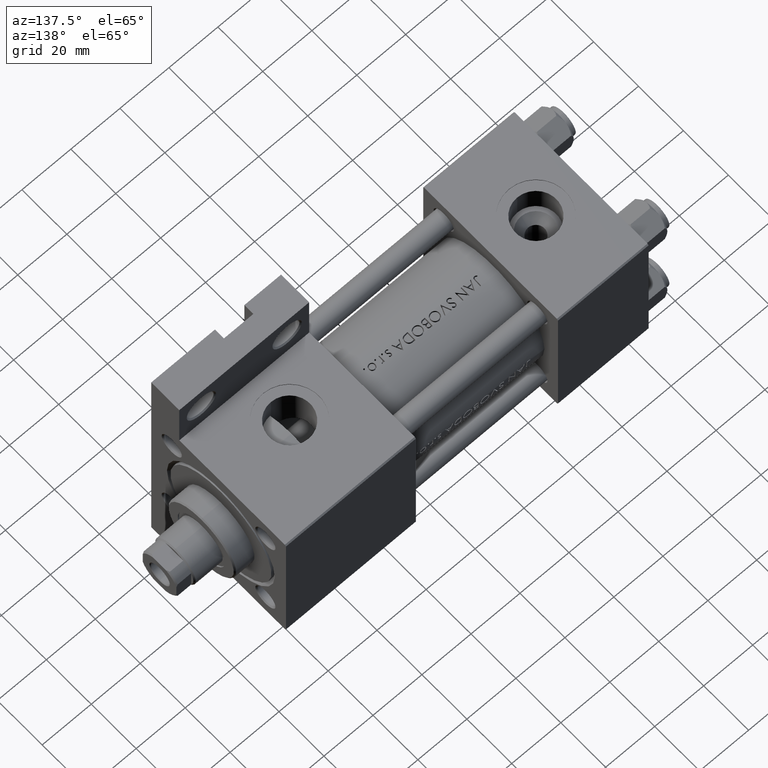
[diagram: clean part render]
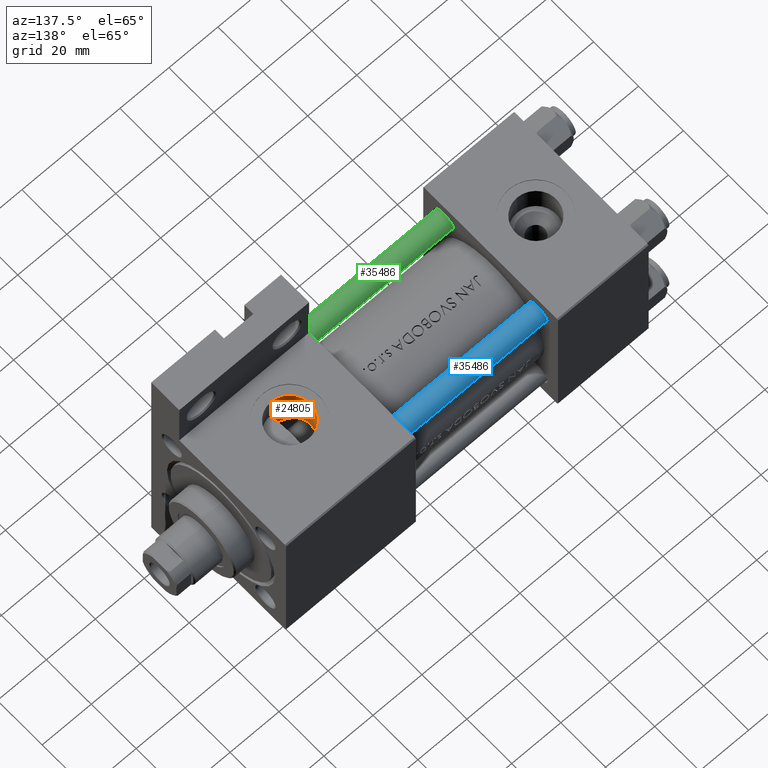
[diagram: same view with three faces highlighted in distinct colors, each labeled with its STEP entity id]
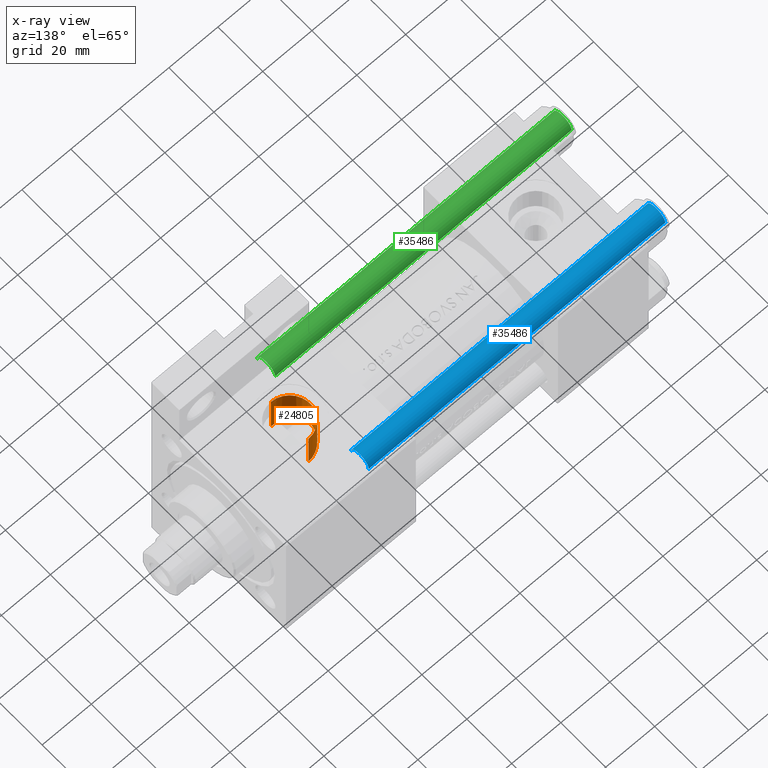
[diagram: x-ray of the same camera — body ghosted, the three highlighted faces saturated]
A machine part, auxiliary view with three faces highlighted in distinct colors.
The next image is the same camera in x-ray (body ghosted, the three faces saturated) — at least one of them is partly hidden behind the body in this view.
Their STEP definitions:

[orange] entity #24805 — the highlighted cylindrical surface (edge-blend (fillet) strip) has radius 8.33 mm, axis along (-0, -0, 1).
#152 = DIRECTION ( 'NONE',  ( 0.000000000000000000, 0.000000000000000000, -1.000000000000000000 ) ) ;
#546 = CARTESIAN_POINT ( 'NONE',  ( 113.9447745599910462, -13.49558842506479728, -6.625962586499325901 ) ) ;
#1060 = CARTESIAN_POINT ( 'NONE',  ( 113.5350992635120946, -13.67874218084610760, -6.292340136017513963 ) ) ;
#4050 = VECTOR ( 'NONE', #6663, 1000.000000000000000 ) ;
#4264 = CARTESIAN_POINT ( 'NONE',  ( 118.9999999999999716, -13.65727278778601850, 8.330000000000005400 ) ) ;
#4416 = CARTESIAN_POINT ( 'NONE',  ( 111.5752649895499360, -14.74221051929571757, -3.814739071753834310 ) ) ;
#5732 = CARTESIAN_POINT ( 'NONE',  ( 119.0000000000000000, -29.80000000000000071, -8.329999999999998295 ) ) ;
#6663 = DIRECTION ( 'NONE',  ( -0.000000000000000000, -1.000000000000000000, -8.673617379884036705E-17 ) ) ;
#6731 = CARTESIAN_POINT ( 'NONE',  ( 111.1802572377113307, -15.38725658591405931, 2.883870468962883571 ) ) ;
#6870 = CARTESIAN_POINT ( 'NONE',  ( 119.0000000000000000, -29.80000000000000071, 8.329999999999998295 ) ) ;
#7158 = DIRECTION ( 'NONE',  ( 0.000000000000000000, 0.000000000000000000, -1.000000000000000000 ) ) ;
#8501 = CARTESIAN_POINT ( 'NONE',  ( 116.2844231252480967, -12.70474083805252263, -7.879717489799560326 ) ) ;
#10563 = CARTESIAN_POINT ( 'NONE',  ( 111.7472532553044999, -15.18721376379365218, 4.133323573101121973 ) ) ;
#11265 = CARTESIAN_POINT ( 'NONE',  ( 119.0000000000000000, 30.00100000000000122, 5.204257164104221228E-15 ) ) ;
#11335 = CARTESIAN_POINT ( 'NONE',  ( 112.7060474951618261, -14.84506177068972121, 5.463518260758180922 ) ) ;
#12335 = LINE ( 'NONE', #27709, #46713 ) ;
#12375 = CARTESIAN_POINT ( 'NONE',  ( 118.9999999999999147, -12.37744319316396258, -8.330000000000008953 ) ) ;
#12505 = VERTEX_POINT ( 'NONE', #20706 ) ;
#12646 = EDGE_CURVE ( 'NONE', #35356, #13357, #18724, .T. ) ;
#13357 = VERTEX_POINT ( 'NONE', #5732 ) ;
#14672 = CARTESIAN_POINT ( 'NONE',  ( 110.8649783903498189, -15.48105943212932445, 1.813030084315799817 ) ) ;
#14871 = CARTESIAN_POINT ( 'NONE',  ( 119.0000000000000000, 30.00100000000000122, -8.329999999999992966 ) ) ;
#15181 = CARTESIAN_POINT ( 'NONE',  ( 116.0156785925474594, -13.93808161561542036, 7.781867807067799347 ) ) ;
#15535 = EDGE_CURVE ( 'NONE', #48957, #35356, #12335, .T. ) ;
#15694 = CARTESIAN_POINT ( 'NONE',  ( 111.8341604813886505, -14.58038837096531104, -4.280767472769193560 ) ) ;
#16465 = CARTESIAN_POINT ( 'NONE',  ( 117.0788754960993003, -12.54034099106977429, -8.110128301142456309 ) ) ;
#18134 = ORIENTED_EDGE ( 'NONE', *, *, #12646, .T. ) ;
#18724 = CIRCLE ( 'NONE', #46637, 8.329999999999998295 ) ;
#19382 = CARTESIAN_POINT ( 'NONE',  ( 119.0000000000000000, -29.80000000000000071, 1.734723475976808635E-17 ) ) ;
#20285 = CARTESIAN_POINT ( 'NONE',  ( 110.9751637256130721, -15.15435615274483006, -2.300267152961667172 ) ) ;
#20706 = CARTESIAN_POINT ( 'NONE',  ( 118.9999999999999147, -12.37744319316396258, -8.330000000000008953 ) ) ;
#21073 = B_SPLINE_CURVE_WITH_KNOTS ( 'NONE', 3,
 ( #42147, #26981, #50361, #27241, #34187, #38785, #15181, #31085, #23373, #39037, #35211, #30059, #11335, #45745, #42656, #10563, #26218, #6731, #22364, #49855, #14672, #30325, #46021, #31601, #39561, #20285, #32118, #4416, #15694, #39296, #48035, #40064, #1060, #546, #32358, #28019, #47548, #31855, #8501, #23893, #16465, #27487, #47022, #12375 ),
 .UNSPECIFIED., .F., .F.,
 ( 4, 2, 2, 2, 2, 2, 2, 2, 2, 2, 2, 2, 2, 2, 2, 2, 2, 2, 2, 2, 2, 4 ),
 ( 0.0002964229747078794743, 0.001960349124772011852, 0.002792312199804097665, 0.003624275274836183912, 0.005288201424900354670, 0.006952127574964525429, 0.007784090649996596063, 0.008616053725028667565, 0.01027997987509280710, 0.01111194295012487600, 0.01194390602515694490, 0.01360783217522108617, 0.01527175832528522396, 0.01693568447534936003, 0.01859961062541350130, 0.02026353677547763563, 0.02109549985050971840, 0.02192746292554180465, 0.02359138907560600143, 0.02442335215063808074, 0.02525531522567016351, 0.02691924137573428397 ),
 .UNSPECIFIED. ) ;
#22364 = CARTESIAN_POINT ( 'NONE',  ( 111.0875519413229426, -15.41754285367233024, 2.619180329637378346 ) ) ;
#23373 = CARTESIAN_POINT ( 'NONE',  ( 114.7797100734272249, -14.20872863379186413, 7.202592882685876496 ) ) ;
#23893 = CARTESIAN_POINT ( 'NONE',  ( 116.8092686651294940, -12.59015132413961346, -8.041455197920139852 ) ) ;
#24805 = ADVANCED_FACE ( 'NONE', ( #46204 ), #27178, .F. ) ;
#24861 = ORIENTED_EDGE ( 'NONE', *, *, #28872, .F. ) ;
#26218 = CARTESIAN_POINT ( 'NONE',  ( 111.4923460854777062, -15.28036243698408114, 3.650859583748323089 ) ) ;
#26981 = CARTESIAN_POINT ( 'NONE',  ( 118.4402288968711332, -13.65727278778600962, 8.329999999999998295 ) ) ;
#27178 = CYLINDRICAL_SURFACE ( 'NONE', #34349, 8.329999999999998295 ) ;
#27206 = ORIENTED_EDGE ( 'NONE', *, *, #29476, .F. ) ;
#27241 = CARTESIAN_POINT ( 'NONE',  ( 117.0748206279014738, -13.77363351099645428, 8.109209814263847349 ) ) ;
#27425 = DIRECTION ( 'NONE',  ( -0.000000000000000000, -1.000000000000000000, -8.673617379884036705E-17 ) ) ;
#27487 = CARTESIAN_POINT ( 'NONE',  ( 117.8895153573025141, -12.42016728142114701, -8.274039251795406003 ) ) ;
#27709 = CARTESIAN_POINT ( 'NONE',  ( 119.0000000000000000, 30.00100000000000122, 8.330000000000003624 ) ) ;
#28019 = CARTESIAN_POINT ( 'NONE',  ( 114.8215882018978391, -13.14172009163120158, -7.225711510336550347 ) ) ;
#28872 = EDGE_CURVE ( 'NONE', #12505, #13357, #45422, .T. ) ;
#29476 = EDGE_CURVE ( 'NONE', #48957, #12505, #21073, .T. ) ;
#30059 = CARTESIAN_POINT ( 'NONE',  ( 112.8875845911658615, -14.78248954541007976, 5.665731596908938350 ) ) ;
#30325 = CARTESIAN_POINT ( 'NONE',  ( 110.7112461880094116, -15.50957323853583780, 0.9962323768327439044 ) ) ;
#31085 = CARTESIAN_POINT ( 'NONE',  ( 115.2599415689696514, -14.09013971890589367, 7.463231622501757201 ) ) ;
#31601 = CARTESIAN_POINT ( 'NONE',  ( 110.6788208291878561, -15.41897209480152853, -0.6800047432425768701 ) ) ;
#31855 = CARTESIAN_POINT ( 'NONE',  ( 116.0299557140279916, -12.76917006670295507, -7.787145633478548490 ) ) ;
#32118 = CARTESIAN_POINT ( 'NONE',  ( 111.1458760946897257, -15.02893595657211812, -2.826952748278971583 ) ) ;
#32358 = CARTESIAN_POINT ( 'NONE',  ( 114.1597696738223107, -13.40442646424482653, -6.784640991668757337 ) ) ;
#34187 = CARTESIAN_POINT ( 'NONE',  ( 116.8040088816501338, -13.80924186775012608, 8.040117357769602791 ) ) ;
#34349 = AXIS2_PLACEMENT_3D ( 'NONE', #11265, #27425, #7158 ) ;
#35211 = CARTESIAN_POINT ( 'NONE',  ( 113.4585362008320431, -14.59198425344949968, 6.242918035339914518 ) ) ;
#35356 = VERTEX_POINT ( 'NONE', #6870 ) ;
#38652 = DIRECTION ( 'NONE',  ( 0.000000000000000000, -1.000000000000000000, -8.673617379884036705E-17 ) ) ;
#38785 = CARTESIAN_POINT ( 'NONE',  ( 116.2739287588945558, -13.89159449363385868, 7.876191954681997842 ) ) ;
#39037 = CARTESIAN_POINT ( 'NONE',  ( 113.8739582388361811, -14.46118184133602291, 6.588769775978934540 ) ) ;
#39296 = CARTESIAN_POINT ( 'NONE',  ( 112.4396089733251500, -14.23084034093848871, -5.160958800410481828 ) ) ;
#39525 = DIRECTION ( 'NONE',  ( -0.000000000000000000, -1.000000000000000000, -8.673617379884036705E-17 ) ) ;
#39561 = CARTESIAN_POINT ( 'NONE',  ( 110.7429708449152201, -15.34852991930145194, -1.229103631835164911 ) ) ;
#40064 = CARTESIAN_POINT ( 'NONE',  ( 113.3394948981820249, -13.77106420032280987, -6.116893409231384915 ) ) ;
#42147 = CARTESIAN_POINT ( 'NONE',  ( 118.9999999999999716, -13.65727278778601850, 8.330000000000005400 ) ) ;
#42656 = CARTESIAN_POINT ( 'NONE',  ( 112.1981779002745583, -15.02462001683807813, 4.816488959745233167 ) ) ;
#43609 = EDGE_LOOP ( 'NONE', ( #27206, #45200, #18134, #24861 ) ) ;
#45200 = ORIENTED_EDGE ( 'NONE', *, *, #15535, .T. ) ;
#45422 = LINE ( 'NONE', #14871, #4050 ) ;
#45745 = CARTESIAN_POINT ( 'NONE',  ( 112.3608501097294834, -14.96629921780479222, 5.038408345233414742 ) ) ;
#46021 = CARTESIAN_POINT ( 'NONE',  ( 110.6628604943898466, -15.50023308341318184, 0.4433216750675684770 ) ) ;
#46204 = FACE_OUTER_BOUND ( 'NONE', #43609, .T. ) ;
#46637 = AXIS2_PLACEMENT_3D ( 'NONE', #19382, #38652, #152 ) ;
#46713 = VECTOR ( 'NONE', #39525, 1000.000000000000000 ) ;
#47022 = CARTESIAN_POINT ( 'NONE',  ( 118.4395586264458444, -12.37744319316392350, -8.329999999999991189 ) ) ;
#47548 = CARTESIAN_POINT ( 'NONE',  ( 115.2879542435925657, -12.97930757043255667, -7.476444142297407502 ) ) ;
#48035 = CARTESIAN_POINT ( 'NONE',  ( 112.7790444670014836, -14.04730117707516790, -5.564514732380302142 ) ) ;
#48957 = VERTEX_POINT ( 'NONE', #4264 ) ;
#49855 = CARTESIAN_POINT ( 'NONE',  ( 110.9298526618756995, -15.46444573078611739, 2.083185498554315895 ) ) ;
#50361 = CARTESIAN_POINT ( 'NONE',  ( 117.8891226359529583, -13.68766009658879490, 8.274155496972177559 ) ) ;

[blue] entity #35486 — the highlighted cylindrical surface (edge-blend (fillet) strip) has radius 4 mm, axis along (1, -0, 0).
#310 = DIRECTION ( 'NONE',  ( -0.000000000000000000, -0.000000000000000000, 1.000000000000000000 ) ) ;
#3536 = DIRECTION ( 'NONE',  ( -0.000000000000000000, -0.000000000000000000, -1.000000000000000000 ) ) ;
#5410 = CARTESIAN_POINT ( 'NONE',  ( -4.000000000000000000, 0.000000000000000000, 121.5000000000000426 ) ) ;
#7312 = VECTOR ( 'NONE', #35976, 1000.000000000000000 ) ;
#7345 = VERTEX_POINT ( 'NONE', #5410 ) ;
#11848 = AXIS2_PLACEMENT_3D ( 'NONE', #46660, #3536, #47171 ) ;
#12118 = CARTESIAN_POINT ( 'NONE',  ( 4.000000000000000000, 4.898587196589411843E-16, 122.0000000000000000 ) ) ;
#12170 = DIRECTION ( 'NONE',  ( -0.000000000000000000, -0.000000000000000000, -1.000000000000000000 ) ) ;
#14359 = EDGE_CURVE ( 'NONE', #27231, #18333, #44442, .T. ) ;
#15320 = FACE_OUTER_BOUND ( 'NONE', #29219, .T. ) ;
#15366 = VERTEX_POINT ( 'NONE', #38753 ) ;
#15722 = CARTESIAN_POINT ( 'NONE',  ( 4.000000000000000000, 4.898587196589411843E-16, 0.5000000000000559552 ) ) ;
#16220 = DIRECTION ( 'NONE',  ( 1.000000000000000000, 0.000000000000000000, 0.000000000000000000 ) ) ;
#16737 = EDGE_CURVE ( 'NONE', #27231, #7345, #45946, .T. ) ;
#17380 = ORIENTED_EDGE ( 'NONE', *, *, #19632, .T. ) ;
#18333 = VERTEX_POINT ( 'NONE', #15722 ) ;
#18662 = DIRECTION ( 'NONE',  ( 0.000000000000000000, 0.000000000000000000, -1.000000000000000000 ) ) ;
#19632 = EDGE_CURVE ( 'NONE', #15366, #18333, #47263, .T. ) ;
#20055 = CARTESIAN_POINT ( 'NONE',  ( 0.000000000000000000, 0.000000000000000000, 0.5000000000000559552 ) ) ;
#20345 = LINE ( 'NONE', #28320, #31846 ) ;
#25444 = EDGE_CURVE ( 'NONE', #7345, #15366, #20345, .T. ) ;
#26581 = CARTESIAN_POINT ( 'NONE',  ( 4.000000000000000000, 4.898587196589411843E-16, 121.5000000000000426 ) ) ;
#27231 = VERTEX_POINT ( 'NONE', #26581 ) ;
#28320 = CARTESIAN_POINT ( 'NONE',  ( -4.000000000000000000, 0.000000000000000000, 122.0000000000000000 ) ) ;
#29077 = ORIENTED_EDGE ( 'NONE', *, *, #16737, .T. ) ;
#29219 = EDGE_LOOP ( 'NONE', ( #40599, #29077, #47054, #17380 ) ) ;
#31846 = VECTOR ( 'NONE', #12170, 1000.000000000000000 ) ;
#35085 = CARTESIAN_POINT ( 'NONE',  ( 0.000000000000000000, 0.000000000000000000, 121.5000000000000426 ) ) ;
#35486 = ADVANCED_FACE ( 'NONE', ( #15320 ), #50761, .T. ) ;
#35976 = DIRECTION ( 'NONE',  ( -0.000000000000000000, -0.000000000000000000, -1.000000000000000000 ) ) ;
#38210 = AXIS2_PLACEMENT_3D ( 'NONE', #20055, #310, #16220 ) ;
#38753 = CARTESIAN_POINT ( 'NONE',  ( -4.000000000000000000, 0.000000000000000000, 0.5000000000000559552 ) ) ;
#40599 = ORIENTED_EDGE ( 'NONE', *, *, #14359, .F. ) ;
#44442 = LINE ( 'NONE', #12118, #7312 ) ;
#45123 = AXIS2_PLACEMENT_3D ( 'NONE', #35085, #18662, #50003 ) ;
#45946 = CIRCLE ( 'NONE', #45123, 4.000000000000000000 ) ;
#46660 = CARTESIAN_POINT ( 'NONE',  ( 0.000000000000000000, 0.000000000000000000, 122.0000000000000000 ) ) ;
#47054 = ORIENTED_EDGE ( 'NONE', *, *, #25444, .T. ) ;
#47171 = DIRECTION ( 'NONE',  ( -1.000000000000000000, 0.000000000000000000, 0.000000000000000000 ) ) ;
#47263 = CIRCLE ( 'NONE', #38210, 4.000000000000000000 ) ;
#50003 = DIRECTION ( 'NONE',  ( 1.000000000000000000, 0.000000000000000000, 0.000000000000000000 ) ) ;
#50761 = CYLINDRICAL_SURFACE ( 'NONE', #11848, 4.000000000000000000 ) ;

[green] entity #35486 — the highlighted cylindrical surface (edge-blend (fillet) strip) has radius 4 mm, axis along (-1, 0, 0).
#310 = DIRECTION ( 'NONE',  ( -0.000000000000000000, -0.000000000000000000, 1.000000000000000000 ) ) ;
#3536 = DIRECTION ( 'NONE',  ( -0.000000000000000000, -0.000000000000000000, -1.000000000000000000 ) ) ;
#5410 = CARTESIAN_POINT ( 'NONE',  ( -4.000000000000000000, 0.000000000000000000, 121.5000000000000426 ) ) ;
#7312 = VECTOR ( 'NONE', #35976, 1000.000000000000000 ) ;
#7345 = VERTEX_POINT ( 'NONE', #5410 ) ;
#11848 = AXIS2_PLACEMENT_3D ( 'NONE', #46660, #3536, #47171 ) ;
#12118 = CARTESIAN_POINT ( 'NONE',  ( 4.000000000000000000, 4.898587196589411843E-16, 122.0000000000000000 ) ) ;
#12170 = DIRECTION ( 'NONE',  ( -0.000000000000000000, -0.000000000000000000, -1.000000000000000000 ) ) ;
#14359 = EDGE_CURVE ( 'NONE', #27231, #18333, #44442, .T. ) ;
#15320 = FACE_OUTER_BOUND ( 'NONE', #29219, .T. ) ;
#15366 = VERTEX_POINT ( 'NONE', #38753 ) ;
#15722 = CARTESIAN_POINT ( 'NONE',  ( 4.000000000000000000, 4.898587196589411843E-16, 0.5000000000000559552 ) ) ;
#16220 = DIRECTION ( 'NONE',  ( 1.000000000000000000, 0.000000000000000000, 0.000000000000000000 ) ) ;
#16737 = EDGE_CURVE ( 'NONE', #27231, #7345, #45946, .T. ) ;
#17380 = ORIENTED_EDGE ( 'NONE', *, *, #19632, .T. ) ;
#18333 = VERTEX_POINT ( 'NONE', #15722 ) ;
#18662 = DIRECTION ( 'NONE',  ( 0.000000000000000000, 0.000000000000000000, -1.000000000000000000 ) ) ;
#19632 = EDGE_CURVE ( 'NONE', #15366, #18333, #47263, .T. ) ;
#20055 = CARTESIAN_POINT ( 'NONE',  ( 0.000000000000000000, 0.000000000000000000, 0.5000000000000559552 ) ) ;
#20345 = LINE ( 'NONE', #28320, #31846 ) ;
#25444 = EDGE_CURVE ( 'NONE', #7345, #15366, #20345, .T. ) ;
#26581 = CARTESIAN_POINT ( 'NONE',  ( 4.000000000000000000, 4.898587196589411843E-16, 121.5000000000000426 ) ) ;
#27231 = VERTEX_POINT ( 'NONE', #26581 ) ;
#28320 = CARTESIAN_POINT ( 'NONE',  ( -4.000000000000000000, 0.000000000000000000, 122.0000000000000000 ) ) ;
#29077 = ORIENTED_EDGE ( 'NONE', *, *, #16737, .T. ) ;
#29219 = EDGE_LOOP ( 'NONE', ( #40599, #29077, #47054, #17380 ) ) ;
#31846 = VECTOR ( 'NONE', #12170, 1000.000000000000000 ) ;
#35085 = CARTESIAN_POINT ( 'NONE',  ( 0.000000000000000000, 0.000000000000000000, 121.5000000000000426 ) ) ;
#35486 = ADVANCED_FACE ( 'NONE', ( #15320 ), #50761, .T. ) ;
#35976 = DIRECTION ( 'NONE',  ( -0.000000000000000000, -0.000000000000000000, -1.000000000000000000 ) ) ;
#38210 = AXIS2_PLACEMENT_3D ( 'NONE', #20055, #310, #16220 ) ;
#38753 = CARTESIAN_POINT ( 'NONE',  ( -4.000000000000000000, 0.000000000000000000, 0.5000000000000559552 ) ) ;
#40599 = ORIENTED_EDGE ( 'NONE', *, *, #14359, .F. ) ;
#44442 = LINE ( 'NONE', #12118, #7312 ) ;
#45123 = AXIS2_PLACEMENT_3D ( 'NONE', #35085, #18662, #50003 ) ;
#45946 = CIRCLE ( 'NONE', #45123, 4.000000000000000000 ) ;
#46660 = CARTESIAN_POINT ( 'NONE',  ( 0.000000000000000000, 0.000000000000000000, 122.0000000000000000 ) ) ;
#47054 = ORIENTED_EDGE ( 'NONE', *, *, #25444, .T. ) ;
#47171 = DIRECTION ( 'NONE',  ( -1.000000000000000000, 0.000000000000000000, 0.000000000000000000 ) ) ;
#47263 = CIRCLE ( 'NONE', #38210, 4.000000000000000000 ) ;
#50003 = DIRECTION ( 'NONE',  ( 1.000000000000000000, 0.000000000000000000, 0.000000000000000000 ) ) ;
#50761 = CYLINDRICAL_SURFACE ( 'NONE', #11848, 4.000000000000000000 ) ;